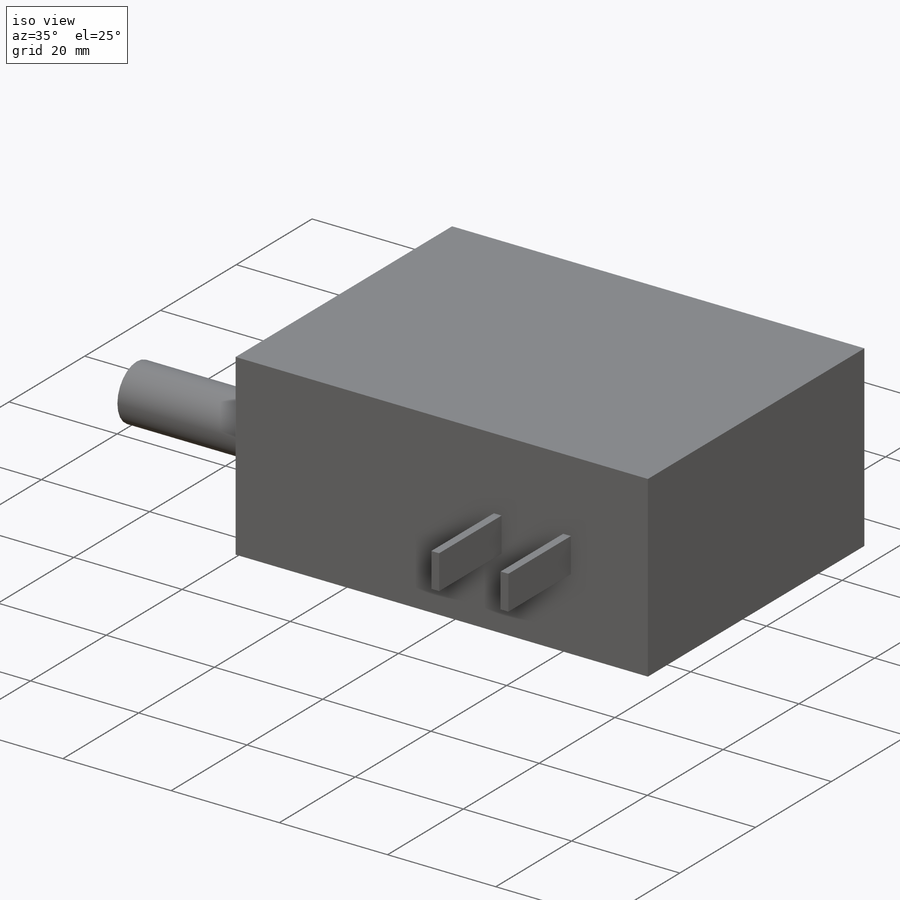
[diagram: iso view]
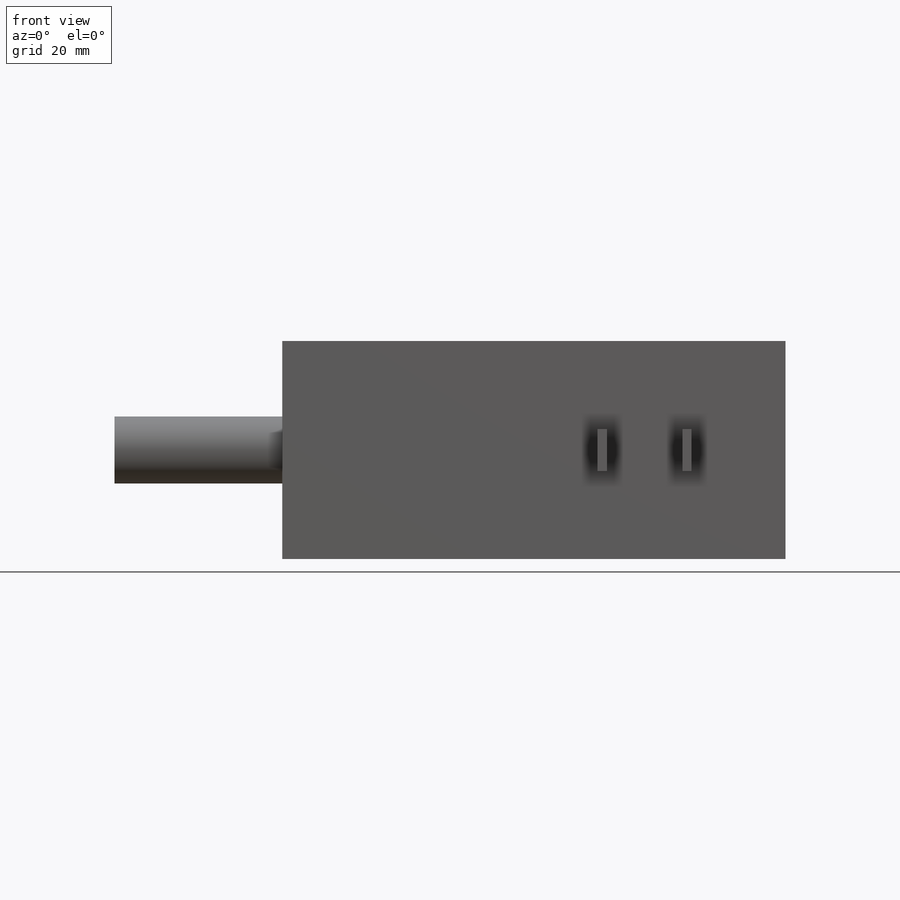
[diagram: front view]
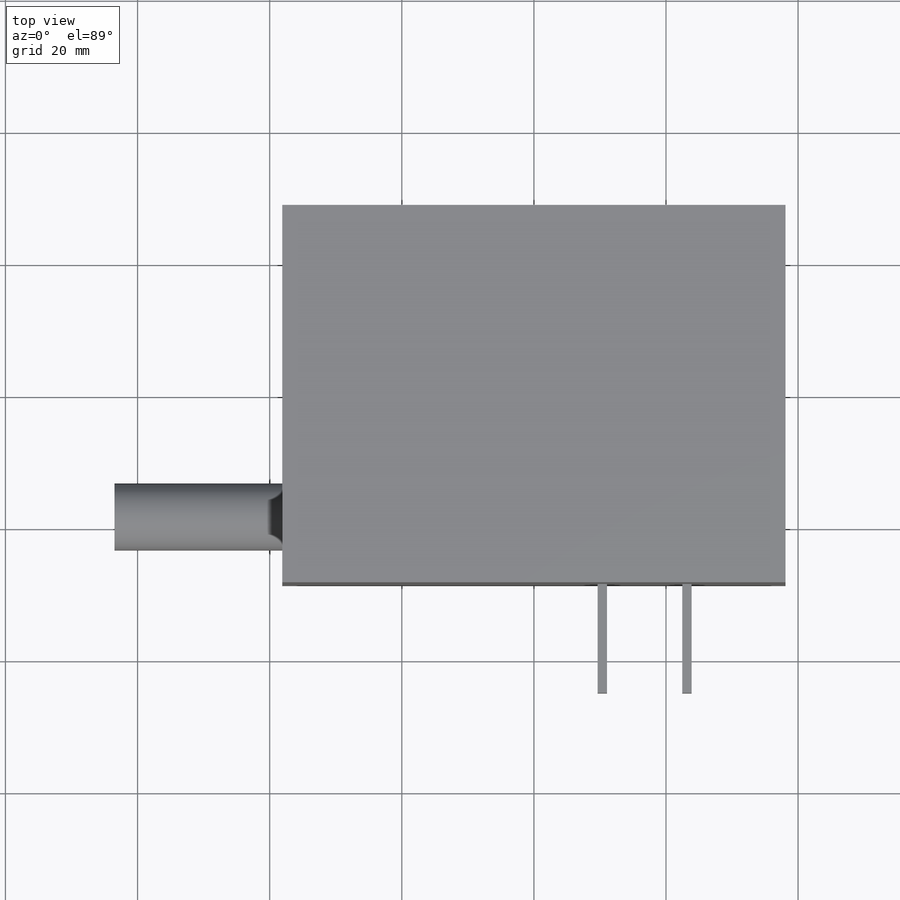
[diagram: top view]
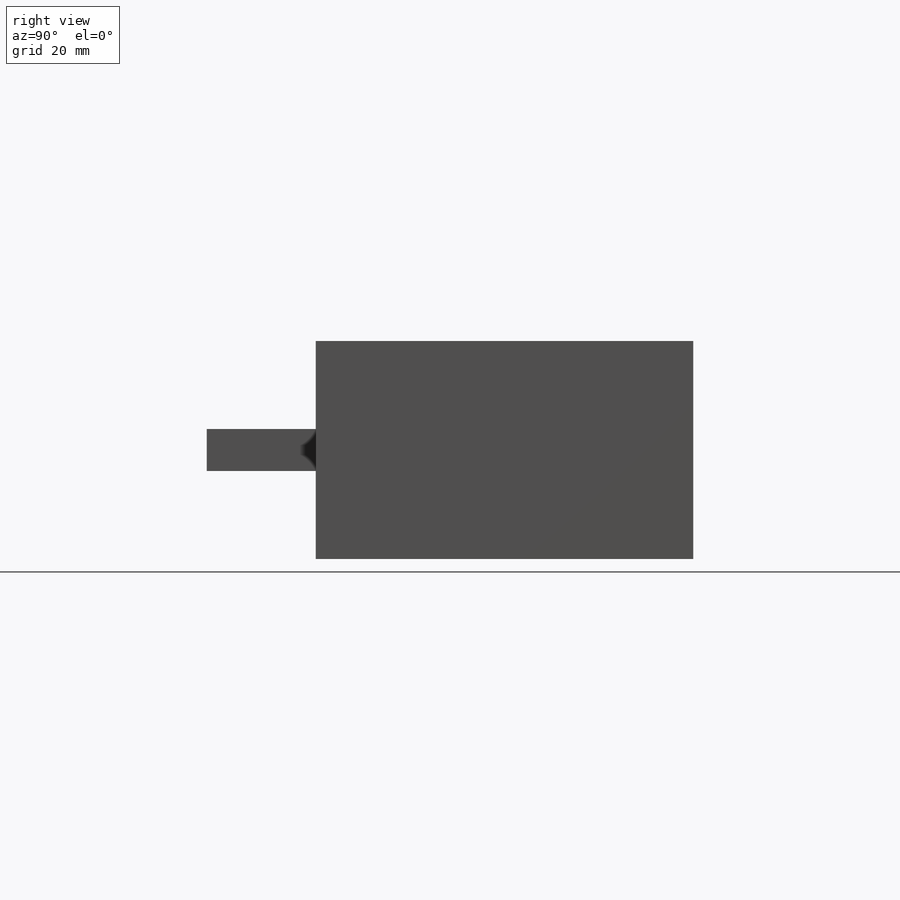
[diagram: right view]
SOLIDWORKS PART (.sldprt)
format: sldprt  version: not decoded by parser v0  size: 160,256 bytes
history: native  units: mm
features: sketch x3, extrude x3, material x1 (+12 scaffold rows collapsed)
feature tree (19):
  scaffold x12  (default folders/planes/origin — collapsed)
  material  "Delrin 2700 NC010, Low Viscosity Acetal Copolymer (SS)"
  sketch  "Sketch1"  dims[D1=76.2mm D2=57.15mm]
  extrude  "Boss-Extrude1"  Depth=33.02mm
  sketch  "Sketch2"  dims[D1=10.16mm D2=10.16mm]
  extrude  "Boss-Extrude2"  Depth=25.4mm
  sketch  "Sketch3"  dims[D1=14.224mm D2=14.224mm D3=1.4224mm D4=6.35mm]
  extrude  "Boss-Extrude3"  Depth=16.51mm
decode coverage: 6 of 6 modeling features carry decoded parameters
note: suppression state not decoded; provenance and decode notes live in map.json
